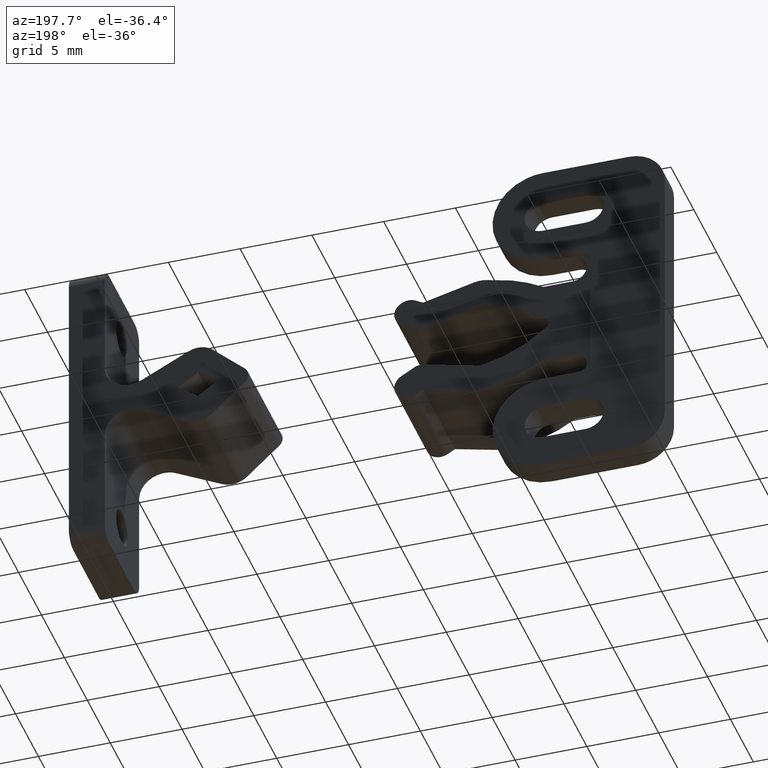
[diagram: clean part render]
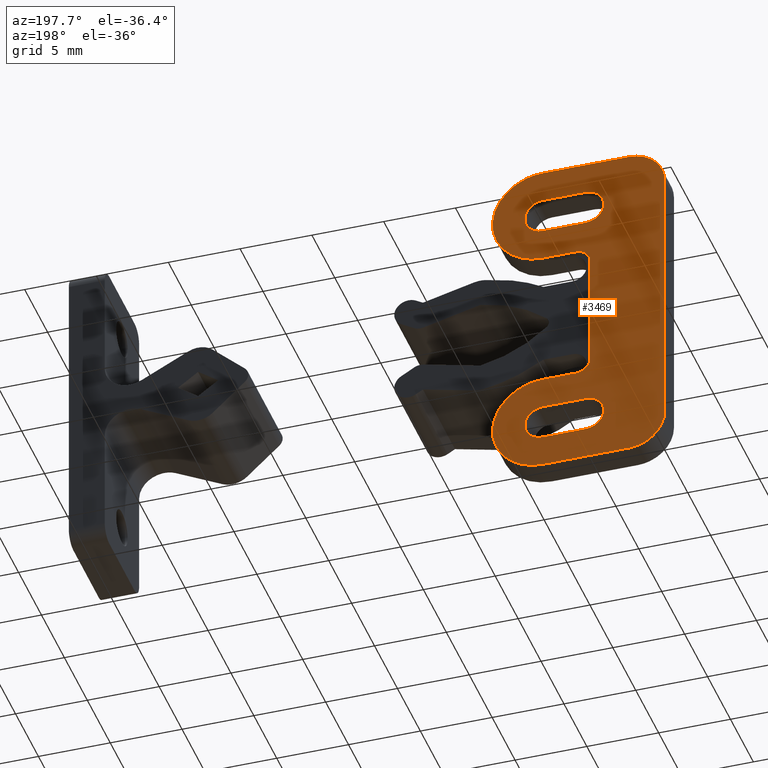
[diagram: same view with one face highlighted and labeled with its STEP entity id]
A machine part, auxiliary view. The second image highlights one B-rep face of the part: STEP entity #3469.
In plain terms, the highlighted face is a freeform B-spline surface patch.
Its self-contained STEP definition (entity closure, byte-faithful):
#1665=CARTESIAN_POINT('',(6.399986499999930,0.0,-4.979794978543850));
#1666=VERTEX_POINT('',#1665);
#1672=CARTESIAN_POINT('',(5.199981999999860,0.0,-4.0));
#1673=VERTEX_POINT('',#1672);
#1674=CARTESIAN_POINT('',(5.199981999999860,0.0,-4.0));
#1675=CARTESIAN_POINT('',(5.199981999999860,0.0,-4.474499274522658));
#1676=CARTESIAN_POINT('',(5.567528246749896,0.0,-4.774598121608899));
#1677=CARTESIAN_POINT('',(5.935074493499931,0.0,-5.074696968695138));
#1678=CARTESIAN_POINT('',(6.399986499999928,0.0,-4.979794978543840));
#1686=(BOUNDED_CURVE()B_SPLINE_CURVE(2,(#1674,#1675,#1676,#1677,#1678),.UNSPECIFIED.,.F.,.U.)B_SPLINE_CURVE_WITH_KNOTS((3,2,3),(0.0,0.500000000000000,1.0),.UNSPECIFIED.)CURVE()GEOMETRIC_REPRESENTATION_ITEM()RATIONAL_B_SPLINE_CURVE((1.0,0.903452752845981,1.0,0.903452752845981,1.0))REPRESENTATION_ITEM(''));
#1687=EDGE_CURVE('',#1673,#1666,#1686,.T.);
#1710=CARTESIAN_POINT('',(5.199981999999860,0.0,4.0));
#1711=VERTEX_POINT('',#1710);
#1712=CARTESIAN_POINT('',(5.199981999999860,0.0,-4.0));
#1713=CARTESIAN_POINT('',(5.199981999999860,0.0,4.0));
#1714=QUASI_UNIFORM_CURVE('',1,(#1712,#1713),.UNSPECIFIED.,.F.,.U.);
#1715=EDGE_CURVE('',#1673,#1711,#1714,.T.);
#1757=CARTESIAN_POINT('',(6.399986499999930,0.0,4.979794978543840));
#1758=VERTEX_POINT('',#1757);
#1759=CARTESIAN_POINT('',(6.399986499999931,0.0,4.979794978543839));
#1760=CARTESIAN_POINT('',(5.935074493499934,0.0,5.074696968695140));
#1761=CARTESIAN_POINT('',(5.567528246749897,0.0,4.774598121608900));
#1762=CARTESIAN_POINT('',(5.199981999999859,0.0,4.474499274522659));
#1763=CARTESIAN_POINT('',(5.199981999999860,0.0,4.0));
#1771=(BOUNDED_CURVE()B_SPLINE_CURVE(2,(#1759,#1760,#1761,#1762,#1763),.UNSPECIFIED.,.F.,.U.)B_SPLINE_CURVE_WITH_KNOTS((3,2,3),(0.0,0.500000000000000,1.0),.UNSPECIFIED.)CURVE()GEOMETRIC_REPRESENTATION_ITEM()RATIONAL_B_SPLINE_CURVE((1.0,0.903452752845981,1.0,0.903452752845981,1.0))REPRESENTATION_ITEM(''));
#1772=EDGE_CURVE('',#1758,#1711,#1771,.T.);
#2801=CARTESIAN_POINT('',(8.500000999999999,0.0,9.749999000000001));
#2802=VERTEX_POINT('',#2801);
#2808=CARTESIAN_POINT('',(8.498419862107211,0.0,7.250002000000000));
#2809=VERTEX_POINT('',#2808);
#2810=CARTESIAN_POINT('',(8.498419862107211,0.0,7.250002000000015));
#2811=CARTESIAN_POINT('',(9.220457950459545,0.0,7.249088685113485));
#2812=CARTESIAN_POINT('',(9.582004457762587,0.0,7.874087851698974));
#2813=CARTESIAN_POINT('',(9.943550965065626,0.0,8.499087018284461));
#2814=CARTESIAN_POINT('',(9.582795315524685,0.0,9.124543009142231));
#2815=CARTESIAN_POINT('',(9.222039665983742,0.0,9.749999000000003));
#2816=CARTESIAN_POINT('',(8.500000999999999,0.0,9.749999000000001));
#2824=(BOUNDED_CURVE()B_SPLINE_CURVE(2,(#2810,#2811,#2812,#2813,#2814,#2815,#2816),.UNSPECIFIED.,.F.,.U.)B_SPLINE_CURVE_WITH_KNOTS((3,2,2,3),(0.0,0.333333333333333,0.666666666666667,1.0),.UNSPECIFIED.)CURVE()GEOMETRIC_REPRESENTATION_ITEM()RATIONAL_B_SPLINE_CURVE((1.0,0.865919975234903,1.0,0.865919975234903,1.0,0.865919975234903,1.0))REPRESENTATION_ITEM(''));
#2825=EDGE_CURVE('',#2809,#2802,#2824,.T.);
#2848=CARTESIAN_POINT('',(5.501580137892760,0.0,7.250002000000000));
#2849=VERTEX_POINT('',#2848);
#2850=CARTESIAN_POINT('',(5.501580137892760,0.0,7.250002000000000));
#2851=CARTESIAN_POINT('',(8.498419862107211,0.0,7.250002000000000));
#2852=QUASI_UNIFORM_CURVE('',1,(#2850,#2851),.UNSPECIFIED.,.F.,.U.);
#2853=EDGE_CURVE('',#2849,#2809,#2852,.T.);
#2901=CARTESIAN_POINT('',(5.499999000000000,0.0,9.749999000000001));
#2902=VERTEX_POINT('',#2901);
#2903=CARTESIAN_POINT('',(5.499999000000000,0.0,9.749999000000001));
#2904=CARTESIAN_POINT('',(4.777960334016266,0.0,9.749999000000001));
#2905=CARTESIAN_POINT('',(4.417204684475322,0.0,9.124543009142240));
#2906=CARTESIAN_POINT('',(4.056449034934379,0.0,8.499087018284479));
#2907=CARTESIAN_POINT('',(4.417995542237404,0.0,7.874087851698991));
#2908=CARTESIAN_POINT('',(4.779542049540430,0.0,7.249088685113503));
#2909=CARTESIAN_POINT('',(5.501580137892760,0.0,7.250002000000015));
#2917=(BOUNDED_CURVE()B_SPLINE_CURVE(2,(#2903,#2904,#2905,#2906,#2907,#2908,#2909),.UNSPECIFIED.,.F.,.U.)B_SPLINE_CURVE_WITH_KNOTS((3,2,2,3),(0.0,0.333333333333333,0.666666666666667,1.0),.UNSPECIFIED.)CURVE()GEOMETRIC_REPRESENTATION_ITEM()RATIONAL_B_SPLINE_CURVE((1.0,0.865919975234905,1.0,0.865919975234905,1.0,0.865919975234905,1.0))REPRESENTATION_ITEM(''));
#2918=EDGE_CURVE('',#2902,#2849,#2917,.T.);
#2939=CARTESIAN_POINT('',(8.500000999999999,0.0,9.749999000000001));
#2940=CARTESIAN_POINT('',(5.499999000000000,0.0,9.749999000000001));
#2941=QUASI_UNIFORM_CURVE('',1,(#2939,#2940),.UNSPECIFIED.,.F.,.U.);
#2942=EDGE_CURVE('',#2802,#2902,#2941,.T.);
#2962=CARTESIAN_POINT('',(8.498419862107211,1.734723E-015,-9.749998000000000));
#2963=VERTEX_POINT('',#2962);
#2969=CARTESIAN_POINT('',(5.501580137892760,0.0,-9.749998000000000));
#2970=VERTEX_POINT('',#2969);
#2971=CARTESIAN_POINT('',(5.501580137892760,0.0,-9.749998000000000));
#2972=CARTESIAN_POINT('',(8.498419862107211,1.734723E-015,-9.749998000000000));
#2973=QUASI_UNIFORM_CURVE('',1,(#2971,#2972),.UNSPECIFIED.,.F.,.U.);
#2974=EDGE_CURVE('',#2970,#2963,#2973,.T.);
#3022=CARTESIAN_POINT('',(5.499999000000000,0.0,-7.250001000000000));
#3023=VERTEX_POINT('',#3022);
#3024=CARTESIAN_POINT('',(5.499999000000000,0.0,-7.250001000000001));
#3025=CARTESIAN_POINT('',(4.777960334016266,0.0,-7.250001000000002));
#3026=CARTESIAN_POINT('',(4.417204684475322,0.0,-7.875456990857762));
#3027=CARTESIAN_POINT('',(4.056449034934379,0.0,-8.500912981715523));
#3028=CARTESIAN_POINT('',(4.417995542237404,0.0,-9.125912148301010));
#3029=CARTESIAN_POINT('',(4.779542049540430,0.0,-9.750911314886496));
#3030=CARTESIAN_POINT('',(5.501580137892760,0.0,-9.749997999999986));
#3038=(BOUNDED_CURVE()B_SPLINE_CURVE(2,(#3024,#3025,#3026,#3027,#3028,#3029,#3030),.UNSPECIFIED.,.F.,.U.)B_SPLINE_CURVE_WITH_KNOTS((3,2,2,3),(0.0,0.333333333333333,0.666666666666667,1.0),.UNSPECIFIED.)CURVE()GEOMETRIC_REPRESENTATION_ITEM()RATIONAL_B_SPLINE_CURVE((1.0,0.865919975234905,1.0,0.865919975234905,1.0,0.865919975234905,1.0))REPRESENTATION_ITEM(''));
#3039=EDGE_CURVE('',#3023,#2970,#3038,.T.);
#3062=CARTESIAN_POINT('',(8.500000999999999,0.0,-7.250001000000000));
#3063=VERTEX_POINT('',#3062);
#3064=CARTESIAN_POINT('',(8.500000999999999,0.0,-7.250001000000000));
#3065=CARTESIAN_POINT('',(5.499999000000000,0.0,-7.250001000000000));
#3066=QUASI_UNIFORM_CURVE('',1,(#3064,#3065),.UNSPECIFIED.,.F.,.U.);
#3067=EDGE_CURVE('',#3063,#3023,#3066,.T.);
#3113=CARTESIAN_POINT('',(8.498419862107211,0.0,-9.749997999999986));
#3114=CARTESIAN_POINT('',(9.220457950459545,0.0,-9.750911314886515));
#3115=CARTESIAN_POINT('',(9.582004457762587,0.0,-9.125912148301028));
#3116=CARTESIAN_POINT('',(9.943550965065626,0.0,-8.500912981715540));
#3117=CARTESIAN_POINT('',(9.582795315524685,0.0,-7.875456990857770));
#3118=CARTESIAN_POINT('',(9.222039665983742,0.0,-7.250001000000001));
#3119=CARTESIAN_POINT('',(8.500000999999999,0.0,-7.250001000000001));
#3127=(BOUNDED_CURVE()B_SPLINE_CURVE(2,(#3113,#3114,#3115,#3116,#3117,#3118,#3119),.UNSPECIFIED.,.F.,.U.)B_SPLINE_CURVE_WITH_KNOTS((3,2,2,3),(0.0,0.333333333333333,0.666666666666667,1.0),.UNSPECIFIED.)CURVE()GEOMETRIC_REPRESENTATION_ITEM()RATIONAL_B_SPLINE_CURVE((1.0,0.865919975234903,1.0,0.865919975234903,1.0,0.865919975234903,1.0))REPRESENTATION_ITEM(''));
#3128=EDGE_CURVE('',#2963,#3063,#3127,.T.);
#3312=CARTESIAN_POINT('',(-0.599399976741647,1.734723E-015,13.198799953483350));
#3313=CARTESIAN_POINT('',(12.599400298606749,1.734723E-015,13.198799953483350));
#3314=CARTESIAN_POINT('',(-0.599399976741647,1.734723E-015,-13.198800597213509));
#3315=CARTESIAN_POINT('',(12.599400298606749,1.734723E-015,-13.198800597213509));
#3316=B_SPLINE_SURFACE_WITH_KNOTS('',1,1,((#3312,#3314),(#3313,#3315)),.UNSPECIFIED.,.F.,.F.,.U.,(2,2),(2,2),(0.0,13.198800275348400),(0.0,26.397600550696861),.UNSPECIFIED.);
#3317=CARTESIAN_POINT('',(6.599991000000000,0.0,5.0));
#3318=VERTEX_POINT('',#3317);
#3319=CARTESIAN_POINT('',(6.599991000000000,0.0,5.0));
#3320=CARTESIAN_POINT('',(6.498968165733001,0.0,5.000000000000001));
#3321=CARTESIAN_POINT('',(6.399986499999930,0.0,4.979794978543839));
#3329=(BOUNDED_CURVE()B_SPLINE_CURVE(2,(#3319,#3320,#3321),.UNSPECIFIED.,.F.,.U.)CURVE()GEOMETRIC_REPRESENTATION_ITEM()QUASI_UNIFORM_CURVE()RATIONAL_B_SPLINE_CURVE((1.0,0.994935922193947,1.0))REPRESENTATION_ITEM(''));
#3330=EDGE_CURVE('',#3318,#1758,#3329,.T.);
#3331=ORIENTED_EDGE('',*,*,#3330,.T.);
#3332=ORIENTED_EDGE('',*,*,#1772,.T.);
#3333=ORIENTED_EDGE('',*,*,#1715,.F.);
#3334=ORIENTED_EDGE('',*,*,#1687,.T.);
#3335=CARTESIAN_POINT('',(6.599991017453300,0.0,-5.0));
#3336=VERTEX_POINT('',#3335);
#3337=CARTESIAN_POINT('',(6.399986499999932,0.0,-4.979794978543839));
#3338=CARTESIAN_POINT('',(6.498968174370591,0.0,-5.000000001763182));
#3339=CARTESIAN_POINT('',(6.599991017453300,0.0,-5.0));
#3347=(BOUNDED_CURVE()B_SPLINE_CURVE(2,(#3337,#3338,#3339),.UNSPECIFIED.,.F.,.U.)CURVE()GEOMETRIC_REPRESENTATION_ITEM()QUASI_UNIFORM_CURVE()RATIONAL_B_SPLINE_CURVE((1.0,0.994935921316820,1.0))REPRESENTATION_ITEM(''));
#3348=EDGE_CURVE('',#1666,#3336,#3347,.T.);
#3349=ORIENTED_EDGE('',*,*,#3348,.T.);
#3350=CARTESIAN_POINT('',(8.500000000000000,0.0,-5.0));
#3351=VERTEX_POINT('',#3350);
#3352=CARTESIAN_POINT('',(6.599991017453300,0.0,-5.0));
#3353=CARTESIAN_POINT('',(8.500000000000000,0.0,-5.0));
#3354=QUASI_UNIFORM_CURVE('',1,(#3352,#3353),.UNSPECIFIED.,.F.,.U.);
#3355=EDGE_CURVE('',#3336,#3351,#3354,.T.);
#3356=ORIENTED_EDGE('',*,*,#3355,.T.);
#3357=CARTESIAN_POINT('',(8.499999816740440,0.0,-12.0));
#3358=VERTEX_POINT('',#3357);
#3359=CARTESIAN_POINT('',(8.499999816740440,0.0,-12.0));
#3360=CARTESIAN_POINT('',(10.520725799628474,0.0,-12.000000105804956));
#3361=CARTESIAN_POINT('',(11.531088852159010,0.0,-10.250000105804959));
#3362=CARTESIAN_POINT('',(12.541451904689557,0.0,-8.500000105804958));
#3363=CARTESIAN_POINT('',(11.531088943788800,0.0,-6.750000052902478));
#3364=CARTESIAN_POINT('',(10.520725982888036,0.0,-5.000000000000001));
#3365=CARTESIAN_POINT('',(8.500000000000000,0.0,-5.000000000000001));
#3373=(BOUNDED_CURVE()B_SPLINE_CURVE(2,(#3359,#3360,#3361,#3362,#3363,#3364,#3365),.UNSPECIFIED.,.F.,.U.)B_SPLINE_CURVE_WITH_KNOTS((3,2,2,3),(0.0,0.333333333333333,0.666666666666667,1.0),.UNSPECIFIED.)CURVE()GEOMETRIC_REPRESENTATION_ITEM()RATIONAL_B_SPLINE_CURVE((1.0,0.866025399421116,1.0,0.866025399421116,1.0,0.866025399421116,1.0))REPRESENTATION_ITEM(''));
#3374=EDGE_CURVE('',#3358,#3351,#3373,.T.);
#3375=ORIENTED_EDGE('',*,*,#3374,.F.);
#3376=CARTESIAN_POINT('',(2.500000000000000,0.0,-12.0));
#3377=VERTEX_POINT('',#3376);
#3378=CARTESIAN_POINT('',(8.499999816740440,0.0,-12.0));
#3379=CARTESIAN_POINT('',(2.500000000000000,0.0,-12.0));
#3380=QUASI_UNIFORM_CURVE('',1,(#3378,#3379),.UNSPECIFIED.,.F.,.U.);
#3381=EDGE_CURVE('',#3358,#3377,#3380,.T.);
#3382=ORIENTED_EDGE('',*,*,#3381,.T.);
#3383=CARTESIAN_POINT('',(4.440892E-014,0.0,-9.499999607300909));
#3384=VERTEX_POINT('',#3383);
#3385=CARTESIAN_POINT('',(3.079134E-014,0.0,-9.499999607300907));
#3386=CARTESIAN_POINT('',(-0.000000162661277,0.0,-10.535533628252537));
#3387=CARTESIAN_POINT('',(0.732232908193541,0.0,-11.267766814126270));
#3388=CARTESIAN_POINT('',(1.464465979048360,0.0,-12.0));
#3389=CARTESIAN_POINT('',(2.500000000000000,0.0,-12.0));
#3397=(BOUNDED_CURVE()B_SPLINE_CURVE(2,(#3385,#3386,#3387,#3388,#3389),.UNSPECIFIED.,.F.,.U.)B_SPLINE_CURVE_WITH_KNOTS((3,2,3),(0.0,0.500000000000000,1.0),.UNSPECIFIED.)CURVE()GEOMETRIC_REPRESENTATION_ITEM()RATIONAL_B_SPLINE_CURVE((1.0,0.923879517483342,1.0,0.923879517483342,1.0))REPRESENTATION_ITEM(''));
#3398=EDGE_CURVE('',#3384,#3377,#3397,.T.);
#3399=ORIENTED_EDGE('',*,*,#3398,.F.);
#3400=CARTESIAN_POINT('',(2.309264E-014,0.0,9.499999781833841));
#3401=VERTEX_POINT('',#3400);
#3402=CARTESIAN_POINT('',(4.440892E-014,0.0,-9.499999607300909));
#3403=CARTESIAN_POINT('',(2.309264E-014,0.0,9.499999781833841));
#3404=QUASI_UNIFORM_CURVE('',1,(#3402,#3403),.UNSPECIFIED.,.F.,.U.);
#3405=EDGE_CURVE('',#3384,#3401,#3404,.T.);
#3406=ORIENTED_EDGE('',*,*,#3405,.T.);
#3407=CARTESIAN_POINT('',(2.499999869100320,0.0,12.0));
#3408=VERTEX_POINT('',#3407);
#3409=CARTESIAN_POINT('',(2.499999869100320,0.0,12.0));
#3410=CARTESIAN_POINT('',(1.464465937607824,0.0,11.999999945779576));
#3411=CARTESIAN_POINT('',(0.732232923620225,0.0,11.267766829552951));
#3412=CARTESIAN_POINT('',(-0.000000090367374,0.0,10.535533713326336));
#3413=CARTESIAN_POINT('',(9.540979E-015,0.0,9.499999781833841));
#3421=(BOUNDED_CURVE()B_SPLINE_CURVE(2,(#3409,#3410,#3411,#3412,#3413),.UNSPECIFIED.,.F.,.U.)B_SPLINE_CURVE_WITH_KNOTS((3,2,3),(0.0,0.500000000000000,1.0),.UNSPECIFIED.)CURVE()GEOMETRIC_REPRESENTATION_ITEM()RATIONAL_B_SPLINE_CURVE((1.0,0.923879529171743,1.0,0.923879529171743,1.0))REPRESENTATION_ITEM(''));
#3422=EDGE_CURVE('',#3408,#3401,#3421,.T.);
#3423=ORIENTED_EDGE('',*,*,#3422,.F.);
#3424=CARTESIAN_POINT('',(8.500000000000000,0.0,12.0));
#3425=VERTEX_POINT('',#3424);
#3426=CARTESIAN_POINT('',(2.499999869100320,0.0,12.0));
#3427=CARTESIAN_POINT('',(8.500000000000000,0.0,12.0));
#3428=QUASI_UNIFORM_CURVE('',1,(#3426,#3427),.UNSPECIFIED.,.F.,.U.);
#3429=EDGE_CURVE('',#3408,#3425,#3428,.T.);
#3430=ORIENTED_EDGE('',*,*,#3429,.T.);
#3431=CARTESIAN_POINT('',(8.499999816740440,0.0,5.0));
#3432=VERTEX_POINT('',#3431);
#3433=CARTESIAN_POINT('',(8.499999816740440,0.0,5.000000000000005));
#3434=CARTESIAN_POINT('',(10.520725799628474,0.0,4.999999894195048));
#3435=CARTESIAN_POINT('',(11.531088852159010,0.0,6.749999894195045));
#3436=CARTESIAN_POINT('',(12.541451904689557,0.0,8.499999894195044));
#3437=CARTESIAN_POINT('',(11.531088943788800,0.0,10.249999947097519));
#3438=CARTESIAN_POINT('',(10.520725982888036,0.0,11.999999999999998));
#3439=CARTESIAN_POINT('',(8.500000000000000,0.0,12.0));
#3447=(BOUNDED_CURVE()B_SPLINE_CURVE(2,(#3433,#3434,#3435,#3436,#3437,#3438,#3439),.UNSPECIFIED.,.F.,.U.)B_SPLINE_CURVE_WITH_KNOTS((3,2,2,3),(0.0,0.333333333333333,0.666666666666667,1.0),.UNSPECIFIED.)CURVE()GEOMETRIC_REPRESENTATION_ITEM()RATIONAL_B_SPLINE_CURVE((1.0,0.866025399421116,1.0,0.866025399421116,1.0,0.866025399421116,1.0))REPRESENTATION_ITEM(''));
#3448=EDGE_CURVE('',#3432,#3425,#3447,.T.);
#3449=ORIENTED_EDGE('',*,*,#3448,.F.);
#3450=CARTESIAN_POINT('',(8.499999816740440,0.0,5.0));
#3451=CARTESIAN_POINT('',(6.599991000000000,0.0,5.0));
#3452=QUASI_UNIFORM_CURVE('',1,(#3450,#3451),.UNSPECIFIED.,.F.,.U.);
#3453=EDGE_CURVE('',#3432,#3318,#3452,.T.);
#3454=ORIENTED_EDGE('',*,*,#3453,.T.);
#3455=EDGE_LOOP('',(#3331,#3332,#3333,#3334,#3349,#3356,#3375,#3382,#3399,#3406,#3423,#3430,#3449,#3454));
#3456=FACE_OUTER_BOUND('',#3455,.T.);
#3457=ORIENTED_EDGE('',*,*,#2974,.T.);
#3458=ORIENTED_EDGE('',*,*,#3128,.T.);
#3459=ORIENTED_EDGE('',*,*,#3067,.T.);
#3460=ORIENTED_EDGE('',*,*,#3039,.T.);
#3461=EDGE_LOOP('',(#3457,#3458,#3459,#3460));
#3462=FACE_BOUND('',#3461,.T.);
#3463=ORIENTED_EDGE('',*,*,#2825,.T.);
#3464=ORIENTED_EDGE('',*,*,#2942,.T.);
#3465=ORIENTED_EDGE('',*,*,#2918,.T.);
#3466=ORIENTED_EDGE('',*,*,#2853,.T.);
#3467=EDGE_LOOP('',(#3463,#3464,#3465,#3466));
#3468=FACE_BOUND('',#3467,.T.);
#3469=ADVANCED_FACE('',(#3456,#3462,#3468),#3316,.T.);